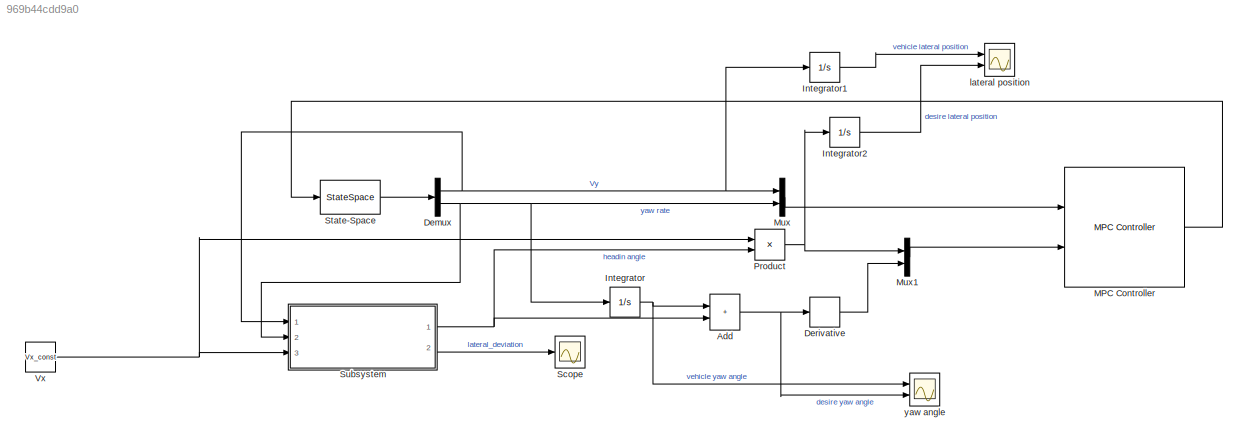
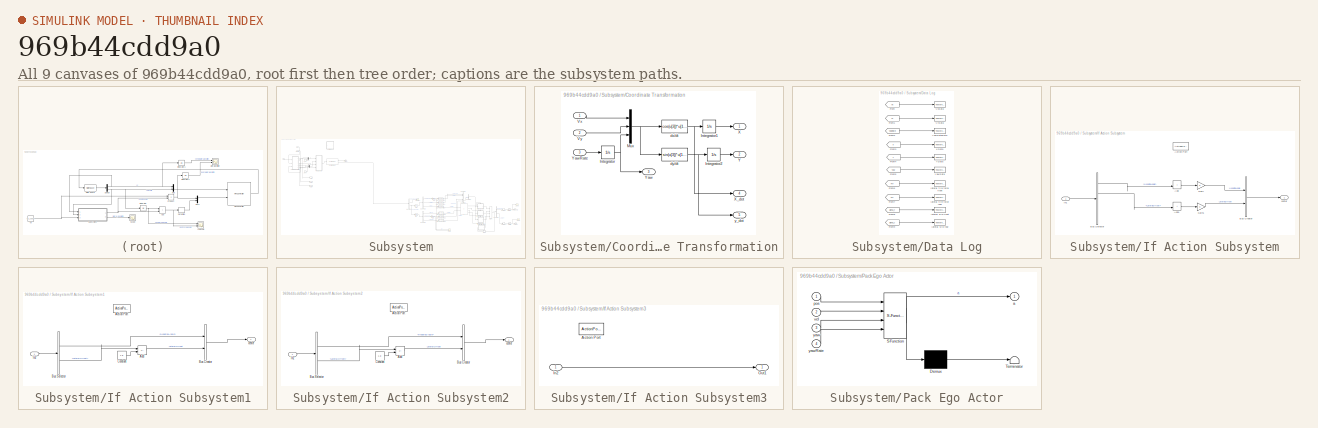
[diagram: thumbnail index - all 9 canvases of the model, root first then tree order]
MODEL slx_969b44cdd9a0
KIND model
CONFIG AbsTol = auto
CONFIG EnableMultiTasking = off
CONFIG FixedStep = 0.1
CONFIG MaxStep = auto
CONFIG MinStep = 0.001
CONFIG PostLoadFcn = if exist('scenarioName','var')\n  helperAEBSetUp(scenarioName)\nelse\n  helperAEBSetUp()\nend
CONFIG RelTol = 1e-3
CONFIG SampleTimeConstraint = Unconstrained
CONFIG SolverName = FixedStepAuto
CONFIG StartTime = 0.0
CONFIG StopTime = 20
BLOCK [Sum] Add
  IconShape = rectangular
  Ports = [2, 1]
BLOCK [Demux] Demux
  Outputs = 2
  Ports = [1, 2]
BLOCK [Derivative] Derivative
BLOCK [Integrator] Integrator
  InitialCondition = Yaw0
  Ports = [1, 1]
BLOCK [Integrator] Integrator1
  Ports = [1, 1]
BLOCK [Integrator] Integrator2
  Ports = [1, 1]
BLOCK [Reference] MPC Controller  REF=mpclib/MPC Controller  (lib defined in mdl_ae329e0e0455)
  Ports = [2, 1]
  SCDEnableBlockLinearizationSpecification = on
  SourceBlock = mpclib/MPC Controller
  SourceProductBaseCode = MP
  SourceType = MPC
BLOCK [Mux] Mux
  DisplayOption = bar
  Inputs = 2
  Ports = [2, 1]
BLOCK [Mux] Mux1
  DisplayOption = bar
  Inputs = 2
  Ports = [2, 1]
BLOCK [Product] Product
  Ports = [2, 1]
BLOCK [Scope] Scope
  Floating = off
  NumInputPorts = 1
  Ports = [1]
  ScopeSpecificationString = Simulink.scopes.TimeScopeBlockCfg('CurrentConfiguration', extmgr.ConfigurationSet(extmgr.Configuration('Core','General UI',true),extmgr.Configuration('Core','Source UI',true),extmgr.Configuration('Sources','WiredSimulink',true,'DataLoggingVariableName','ScopeData1'),extmgr.Configuration('Visuals','Time Domain',true,'SerializedDisplays',{struct('MinYLimReal','0.19642','MaxYLimReal','0.53373','YLabe...<+1374ch>
BLOCK [StateSpace] State-Space
  A = A
  B = B
  C = C
  D = D
  InitialCondition = 0
  Ports = [1, 1]
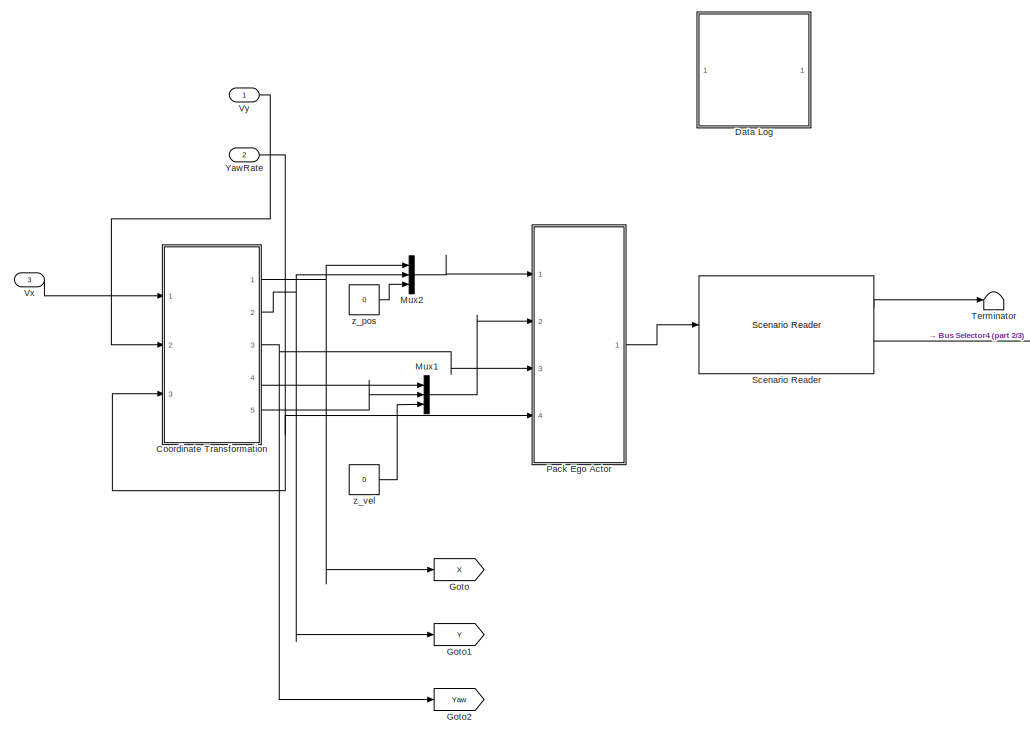
[diagram: Subsystem - part 1/3, top left region]
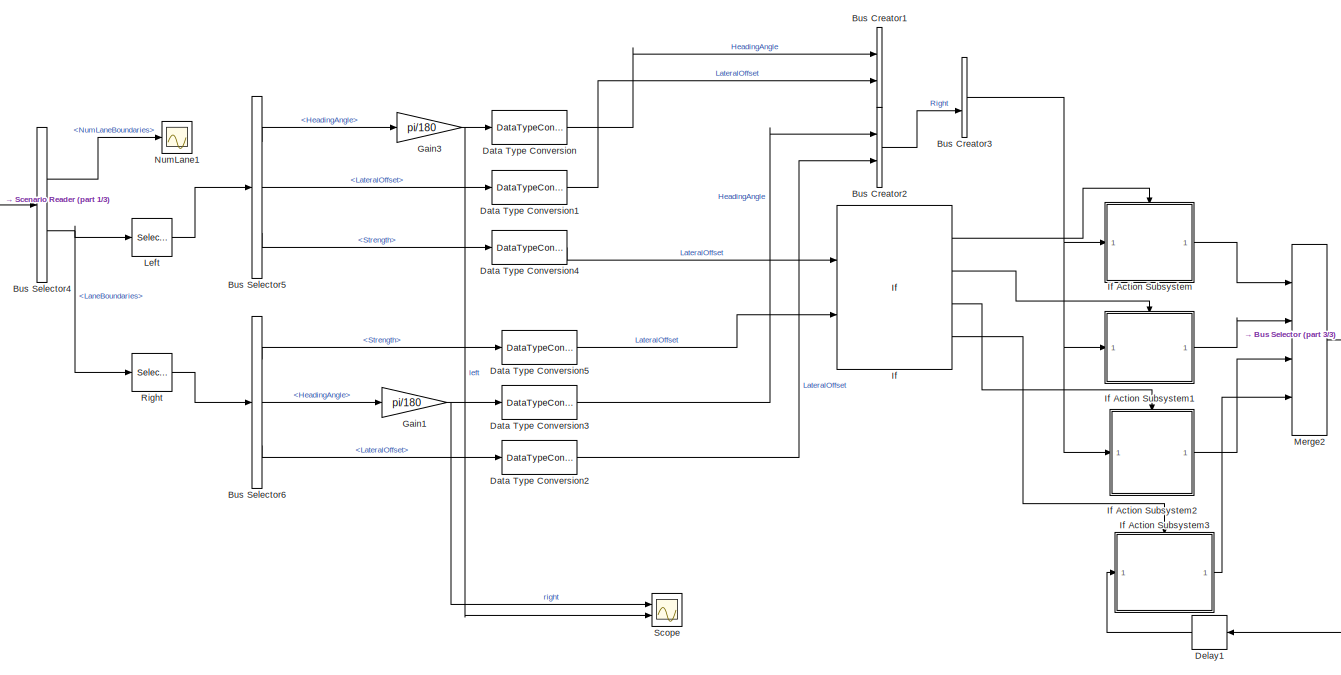
[diagram: Subsystem - part 2/3, bottom right region]
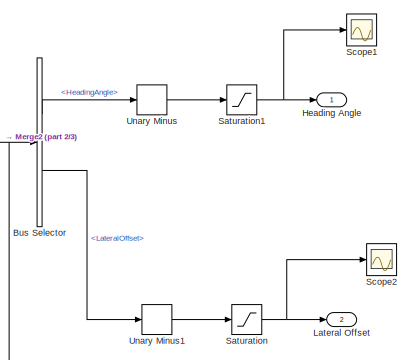
[diagram: Subsystem - part 3/3, bottom right region]
BLOCK [SubSystem] Subsystem
  Ports = [3, 2]
  RequestExecContextInheritance = off
BLOCK [BusCreator] Subsystem/Bus Creator1
  DisplayOption = bar
  InheritFromInputs = on
  Inputs = 2
  Ports = [2, 1]
BLOCK [BusCreator] Subsystem/Bus Creator2
  DisplayOption = bar
  InheritFromInputs = on
  Inputs = 2
  Ports = [2, 1]
BLOCK [BusCreator] Subsystem/Bus Creator3
  DisplayOption = bar
  InheritFromInputs = on
  Inputs = 2
  Ports = [2, 1]
BLOCK [BusSelector] Subsystem/Bus Selector
  OutputSignals = HeadingAngle,LateralOffset
  Ports = [1, 2]
BLOCK [BusSelector] Subsystem/Bus Selector4
  OutputSignals = NumLaneBoundaries,LaneBoundaries
  Ports = [1, 2]
BLOCK [BusSelector] Subsystem/Bus Selector5
  OutputSignals = HeadingAngle,LateralOffset,Strength
  Ports = [1, 3]
BLOCK [BusSelector] Subsystem/Bus Selector6
  OutputSignals = Strength,HeadingAngle,LateralOffset
  Ports = [1, 3]
BLOCK [SubSystem] Subsystem/Coordinate Transformation
  Ports = [3, 5]
  RequestExecContextInheritance = off
BLOCK [Integrator] Subsystem/Coordinate Transformation/Integrator
  InitialCondition = Yaw0
  Ports = [1, 1]
BLOCK [Integrator] Subsystem/Coordinate Transformation/Integrator1
  InitialCondition = X0
  Ports = [1, 1]
BLOCK [Integrator] Subsystem/Coordinate Transformation/Integrator2
  InitialCondition = Y0
  Ports = [1, 1]
BLOCK [Mux] Subsystem/Coordinate Transformation/Mux
  DisplayOption = bar
  Inputs = 3
  Ports = [3, 1]
BLOCK [Inport] Subsystem/Coordinate Transformation/Vx
BLOCK [Inport] Subsystem/Coordinate Transformation/Vy
  Port = 2
BLOCK [Outport] Subsystem/Coordinate Transformation/X
BLOCK [Outport] Subsystem/Coordinate Transformation/X_dot
  Port = 4
BLOCK [Outport] Subsystem/Coordinate Transformation/Y
  Port = 2
BLOCK [Outport] Subsystem/Coordinate Transformation/Yaw
  Port = 3
BLOCK [Inport] Subsystem/Coordinate Transformation/YawRate
  Port = 3
BLOCK [Fcn] Subsystem/Coordinate Transformation/dx//dt
  Expr = cos(u[3])*u[1] - sin(u[3])*u[2]
BLOCK [Fcn] Subsystem/Coordinate Transformation/dy//dt
  Expr = sin(u[3])*u[1] + cos(u[3])*u[2]
BLOCK [Outport] Subsystem/Coordinate Transformation/y_dot
  Port = 5
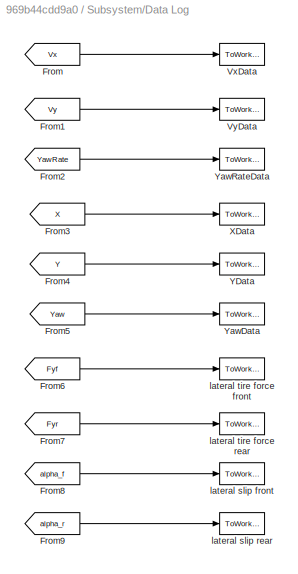
BLOCK [SubSystem] Subsystem/Data Log
  Ports = []
  RequestExecContextInheritance = off
BLOCK [From] Subsystem/Data Log/From
  CloseFcn = tagdialog Close
  GotoTag = Vx
BLOCK [From] Subsystem/Data Log/From1
  CloseFcn = tagdialog Close
  GotoTag = Vy
BLOCK [From] Subsystem/Data Log/From2
  CloseFcn = tagdialog Close
  GotoTag = YawRate
BLOCK [From] Subsystem/Data Log/From3
  CloseFcn = tagdialog Close
  GotoTag = X
  TagVisibility = global
BLOCK [From] Subsystem/Data Log/From4
  CloseFcn = tagdialog Close
  GotoTag = Y
  TagVisibility = global
BLOCK [From] Subsystem/Data Log/From5
  CloseFcn = tagdialog Close
  GotoTag = Yaw
  TagVisibility = global
BLOCK [From] Subsystem/Data Log/From6
  CloseFcn = tagdialog Close
  GotoTag = Fyf
BLOCK [From] Subsystem/Data Log/From7
  CloseFcn = tagdialog Close
  GotoTag = Fyr
BLOCK [From] Subsystem/Data Log/From8
  CloseFcn = tagdialog Close
  GotoTag = alpha_f
BLOCK [From] Subsystem/Data Log/From9
  CloseFcn = tagdialog Close
  GotoTag = alpha_r
BLOCK [ToWorkspace] Subsystem/Data Log/VxData
  MaxDataPoints = inf
  Ports = [1]
  SampleTime = -1
  VariableName = Vx
BLOCK [ToWorkspace] Subsystem/Data Log/VyData
  MaxDataPoints = inf
  Ports = [1]
  SampleTime = -1
  VariableName = Vy
BLOCK [ToWorkspace] Subsystem/Data Log/XData
  MaxDataPoints = inf
  Ports = [1]
  SampleTime = -1
  VariableName = X
BLOCK [ToWorkspace] Subsystem/Data Log/YData
  MaxDataPoints = inf
  Ports = [1]
  SampleTime = -1
  VariableName = Y
BLOCK [ToWorkspace] Subsystem/Data Log/YawData
  MaxDataPoints = inf
  Ports = [1]
  SampleTime = -1
  VariableName = Yaw
BLOCK [ToWorkspace] Subsystem/Data Log/YawRateData
  MaxDataPoints = inf
  Ports = [1]
  SampleTime = -1
  VariableName = YawRate
BLOCK [ToWorkspace] Subsystem/Data Log/lateral slip front
  MaxDataPoints = inf
  Ports = [1]
  SampleTime = -1
  VariableName = alpha_f
BLOCK [ToWorkspace] Subsystem/Data Log/lateral slip rear
  MaxDataPoints = inf
  Ports = [1]
  SampleTime = -1
  VariableName = alpha_r
BLOCK [ToWorkspace] Subsystem/Data Log/lateral tire force front
  MaxDataPoints = inf
  Ports = [1]
  SampleTime = -1
  VariableName = Fyf
BLOCK [ToWorkspace] Subsystem/Data Log/lateral tire force rear
  MaxDataPoints = inf
  Ports = [1]
  SampleTime = -1
  VariableName = Fyr
BLOCK [DataTypeConversion] Subsystem/Data Type Conversion
  RndMeth = Floor
  SaturateOnIntegerOverflow = off
BLOCK [DataTypeConversion] Subsystem/Data Type Conversion1
  RndMeth = Floor
  SaturateOnIntegerOverflow = off
BLOCK [DataTypeConversion] Subsystem/Data Type Conversion2
  RndMeth = Floor
  SaturateOnIntegerOverflow = off
BLOCK [DataTypeConversion] Subsystem/Data Type Conversion3
  RndMeth = Floor
  SaturateOnIntegerOverflow = off
BLOCK [DataTypeConversion] Subsystem/Data Type Conversion4
  RndMeth = Floor
  SaturateOnIntegerOverflow = off
BLOCK [DataTypeConversion] Subsystem/Data Type Conversion5
  RndMeth = Floor
  SaturateOnIntegerOverflow = off
BLOCK [Delay] Subsystem/Delay1
  DelayLength = 1
  InputPortMap = u0
  Ports = [1, 1]
BLOCK [Gain] Subsystem/Gain1
  Gain = pi/180
BLOCK [Gain] Subsystem/Gain3
  Gain = pi/180
BLOCK [Goto] Subsystem/Goto
  GotoTag = X
  TagVisibility = global
BLOCK [Goto] Subsystem/Goto1
  GotoTag = Y
  TagVisibility = global
BLOCK [Goto] Subsystem/Goto2
  GotoTag = Yaw
  TagVisibility = global
BLOCK [Outport] Subsystem/Heading Angle
  VectorParamsAs1DForOutWhenUnconnected = off
BLOCK [If] Subsystem/If
  ElseIfExpressions = u1>0, u2>0
  IfExpression = u1 > 0& u2 > 0
  NumInputs = 2
  Ports = [2, 4]
BLOCK [SubSystem] Subsystem/If Action Subsystem
  Ports = [1, 1, 0, 0, 0, 0, 0, 1]
  RequestExecContextInheritance = off
  TreatAsAtomicUnit = on
BLOCK [ActionPort] Subsystem/If Action Subsystem/Action Port
  ActionPortLabel = if(u1 > 0& u2 > 0)
BLOCK [Sum] Subsystem/If Action Subsystem/Add
  IconShape = rectangular
  Ports = [2, 1]
BLOCK [Sum] Subsystem/If Action Subsystem/Add1
  IconShape = rectangular
  Ports = [2, 1]
BLOCK [BusCreator] Subsystem/If Action Subsystem/Bus Creator
  DisplayOption = bar
  InheritFromInputs = on
  Inputs = 2
  Ports = [2, 1]
BLOCK [BusSelector] Subsystem/If Action Subsystem/Bus Selector
  OutputSignals = Right.HeadingAngle,Right.LateralOffset,Right.HeadingAngle,Right.LateralOffset
  Ports = [1, 4]
BLOCK [Gain] Subsystem/If Action Subsystem/Gain
BLOCK [Gain] Subsystem/If Action Subsystem/Gain1
BLOCK [Inport] Subsystem/If Action Subsystem/In1
BLOCK [Outport] Subsystem/If Action Subsystem/center
BLOCK [SubSystem] Subsystem/If Action Subsystem1
  Ports = [1, 1, 0, 0, 0, 0, 0, 1]
  RequestExecContextInheritance = off
  TreatAsAtomicUnit = on
BLOCK [ActionPort] Subsystem/If Action Subsystem1/Action Port
  ActionPortLabel = elseif(u1>0)
BLOCK [Sum] Subsystem/If Action Subsystem1/Add
  IconShape = rectangular
  Inputs = +-
  Ports = [2, 1]
BLOCK [BusCreator] Subsystem/If Action Subsystem1/Bus Creator
  DisplayOption = bar
  InheritFromInputs = on
  Inputs = 2
  Ports = [2, 1]
BLOCK [BusSelector] Subsystem/If Action Subsystem1/Bus Selector
  OutputSignals = Right.HeadingAngle,Right.LateralOffset
  Ports = [1, 2]
BLOCK [Constant] Subsystem/If Action Subsystem1/Constant
  Value = 1.8
BLOCK [Inport] Subsystem/If Action Subsystem1/In2
BLOCK [Outport] Subsystem/If Action Subsystem1/center
BLOCK [SubSystem] Subsystem/If Action Subsystem2
  Ports = [1, 1, 0, 0, 0, 0, 0, 1]
  RequestExecContextInheritance = off
  TreatAsAtomicUnit = on
BLOCK [ActionPort] Subsystem/If Action Subsystem2/Action Port
  ActionPortLabel = elseif( u2>0)
BLOCK [Sum] Subsystem/If Action Subsystem2/Add
  IconShape = rectangular
  Inputs = +-
  Ports = [2, 1]
BLOCK [BusCreator] Subsystem/If Action Subsystem2/Bus Creator
  DisplayOption = bar
  InheritFromInputs = on
  Inputs = 2
  Ports = [2, 1]
BLOCK [BusSelector] Subsystem/If Action Subsystem2/Bus Selector
  OutputSignals = Right.HeadingAngle,Right.LateralOffset
  Ports = [1, 2]
BLOCK [Constant] Subsystem/If Action Subsystem2/Constant
  Value = 1.8
BLOCK [Inport] Subsystem/If Action Subsystem2/In2
BLOCK [Outport] Subsystem/If Action Subsystem2/center
BLOCK [SubSystem] Subsystem/If Action Subsystem3
  Ports = [1, 1, 0, 0, 0, 0, 0, 1]
  RequestExecContextInheritance = off
  TreatAsAtomicUnit = on
BLOCK [ActionPort] Subsystem/If Action Subsystem3/Action Port
  ActionPortLabel = else
BLOCK [Inport] Subsystem/If Action Subsystem3/In2
BLOCK [Outport] Subsystem/If Action Subsystem3/Out1
BLOCK [Outport] Subsystem/Lateral Offset
  Port = 2
  VectorParamsAs1DForOutWhenUnconnected = off
BLOCK [Selector] Subsystem/Left
  IndexOptions = Index vector (dialog)
  Indices = [1]
  InputPortWidth = 2
  OutputSizes = 1
  Ports = [1, 1]
BLOCK [Merge] Subsystem/Merge2
  Inputs = 4
  Ports = [4, 1]
BLOCK [Mux] Subsystem/Mux1
  DisplayOption = bar
  Inputs = 3
  Ports = [3, 1]
BLOCK [Mux] Subsystem/Mux2
  DisplayOption = bar
  Inputs = 3
  Ports = [3, 1]
BLOCK [Scope] Subsystem/NumLane1
  Floating = off
  NumInputPorts = 1
  Ports = [1]
  ScopeSpecificationString = Simulink.scopes.TimeScopeBlockCfg('CurrentConfiguration', extmgr.ConfigurationSet(extmgr.Configuration('Core','General UI',true),extmgr.Configuration('Core','Source UI',true),extmgr.Configuration('Sources','WiredSimulink',true,'DataLoggingVariableName','ScopeData3'),extmgr.Configuration('Visuals','Time Domain',true,'SerializedDisplays',{struct('MinYLimReal','1.00000','MaxYLimReal','3.00000','YLabe...<+1405ch>
BLOCK [SubSystem] Subsystem/Pack Ego Actor
  ErrorFcn = Stateflow.Translate.translate
  PermitHierarchicalResolution = ExplicitOnly
  Ports = [4, 1]
  RequestExecContextInheritance = off
  SFBlockType = MATLAB Function
  TreatAsAtomicUnit = on
BLOCK [Demux] Subsystem/Pack Ego Actor/ Demux 
  Outputs = 1
  Ports = [1, 1]
BLOCK [S-Function] Subsystem/Pack Ego Actor/ SFunction 
  EnableBusSupport = on
  FunctionName = sf_sfun
  PortCounts = [4 2]
  Ports = [4, 2]
  SFcnIsStateOwnerBlock = off
  SFunctionDeploymentMode = off
  Tag = Stateflow S-Function 5
BLOCK [Terminator] Subsystem/Pack Ego Actor/ Terminator 
BLOCK [Outport] Subsystem/Pack Ego Actor/a
  VectorParamsAs1DForOutWhenUnconnected = off
BLOCK [Inport] Subsystem/Pack Ego Actor/pos
BLOCK [Inport] Subsystem/Pack Ego Actor/vel
  Port = 2
BLOCK [Inport] Subsystem/Pack Ego Actor/yaw
  Port = 3
BLOCK [Inport] Subsystem/Pack Ego Actor/yawRate
  Port = 4
BLOCK [Selector] Subsystem/Right
  IndexOptions = Index vector (dialog)
  Indices = [2]
  InputPortWidth = 2
  OutputSizes = 1
  Ports = [1, 1]
BLOCK [Saturate] Subsystem/Saturation
BLOCK [Saturate] Subsystem/Saturation1
  LowerLimit = -0.6
  UpperLimit = 0.6
BLOCK [Reference] Subsystem/Scenario Reader  REF=drivingscenarioandsensors/Scenario Reader
  Ports = [1, 2]
  SourceBlock = drivingscenarioandsensors/Scenario Reader
  SourceProductBaseCode = DR
  SourceType = driving.scenario.internal.ScenarioReader
BLOCK [Scope] Subsystem/Scope
  Floating = off
  NumInputPorts = 2
  Ports = [2]
  ScopeSpecificationString = Simulink.scopes.TimeScopeBlockCfg('CurrentConfiguration', extmgr.ConfigurationSet(extmgr.Configuration('Core','General UI',true),extmgr.Configuration('Core','Source UI',true),extmgr.Configuration('Sources','WiredSimulink',true,'DataLoggingVariableName','ScopeData2'),extmgr.Configuration('Visuals','Time Domain',true,'SerializedDisplays',{struct('MinYLimReal','-0.69736','MaxYLimReal','0.45122','YLab...<+1404ch>
BLOCK [Scope] Subsystem/Scope1
  Floating = off
  NumInputPorts = 1
  Ports = [1]
  ScopeSpecificationString = Simulink.scopes.TimeScopeBlockCfg('CurrentConfiguration', extmgr.ConfigurationSet(extmgr.Configuration('Core','General UI',true),extmgr.Configuration('Core','Source UI',true),extmgr.Configuration('Sources','WiredSimulink',true,'DataLoggingVariableName','ScopeData4'),extmgr.Configuration('Visuals','Time Domain',true,'SerializedDisplays',{struct('MinYLimReal','-0.45122','MaxYLimReal','0.69736','YLab...<+1403ch>
BLOCK [Scope] Subsystem/Scope2
  Floating = off
  NumInputPorts = 1
  Ports = [1]
  ScopeSpecificationString = Simulink.scopes.TimeScopeBlockCfg('CurrentConfiguration', extmgr.ConfigurationSet(extmgr.Configuration('Core','General UI',true),extmgr.Configuration('Core','Source UI',true),extmgr.Configuration('Sources','WiredSimulink',true,'DataLoggingVariableName','ScopeData5'),extmgr.Configuration('Visuals','Time Domain',true,'SerializedDisplays',{struct('MinYLimReal','-0.625','MaxYLimReal','0.625','YLabelRe...<+1357ch>
BLOCK [Terminator] Subsystem/Terminator
BLOCK [UnaryMinus] Subsystem/Unary Minus
BLOCK [UnaryMinus] Subsystem/Unary Minus1
BLOCK [Inport] Subsystem/Vx
  Port = 3
BLOCK [Inport] Subsystem/Vy
BLOCK [Inport] Subsystem/YawRate
  Port = 2
BLOCK [Constant] Subsystem/z_pos
  Value = 0
BLOCK [Constant] Subsystem/z_vel
  Value = 0
BLOCK [Constant] Vx
  Value = Vx_const
BLOCK [Scope] lateral position
  Floating = off
  NumInputPorts = 2
  Ports = [2]
  ScopeSpecificationString = Simulink.scopes.TimeScopeBlockCfg('CurrentConfiguration', extmgr.ConfigurationSet(extmgr.Configuration('Core','General UI',true),extmgr.Configuration('Core','Source UI',true),extmgr.Configuration('Sources','WiredSimulink',true,'DataLoggingVariableName','ScopeData4'),extmgr.Configuration('Visuals','Time Domain',true,'SerializedDisplays',{struct('MinYLimReal','-43.63001','MaxYLimReal','71.74341','YL...<+1470ch>
BLOCK [Scope] yaw angle
  Floating = off
  NumInputPorts = 2
  Ports = [2]
  ScopeSpecificationString = Simulink.scopes.TimeScopeBlockCfg('CurrentConfiguration', extmgr.ConfigurationSet(extmgr.Configuration('Core','General UI',true),extmgr.Configuration('Core','Source UI',true),extmgr.Configuration('Sources','WiredSimulink',true,'DataLoggingVariableName','ScopeData3'),extmgr.Configuration('Visuals','Time Domain',true,'SerializedDisplays',{struct('MinYLimReal','-16.36051','MaxYLimReal','10.36185','YL...<+1456ch>
NET Add:1 -> Derivative:1, yaw angle:2
NET Demux:1 -> Integrator1:1, Mux:1, Subsystem:1
NET Demux:2 -> Integrator:1, Mux:2, Subsystem:2
LINE Derivative:1 -> Mux1:2
LINE Integrator1:1 -> lateral position:1
LINE Integrator2:1 -> lateral position:2
NET Integrator:1 -> Add:1, yaw angle:1
LINE MPC Controller:1 -> State-Space:1
LINE Mux1:1 -> MPC Controller:2
LINE Mux:1 -> MPC Controller:1
NET Product:1 -> Integrator2:1, Mux1:1
LINE State-Space:1 -> Demux:1
LINE Subsystem/Bus Creator2:1 -> Subsystem/Bus Creator3:2
NET Subsystem/Bus Creator3:1 -> Subsystem/If Action Subsystem1:1, Subsystem/If Action Subsystem2:1, Subsystem/If Action Subsystem:1
LINE Subsystem/Bus Selector4:1 -> Subsystem/NumLane1:1
NET Subsystem/Bus Selector4:2 -> Subsystem/Left:1, Subsystem/Right:1
LINE Subsystem/Bus Selector5:1 -> Subsystem/Gain3:1
LINE Subsystem/Bus Selector5:2 -> Subsystem/Data Type Conversion1:1
LINE Subsystem/Bus Selector5:3 -> Subsystem/Data Type Conversion4:1
LINE Subsystem/Bus Selector6:1 -> Subsystem/Data Type Conversion5:1
LINE Subsystem/Bus Selector6:2 -> Subsystem/Gain1:1
LINE Subsystem/Bus Selector6:3 -> Subsystem/Data Type Conversion2:1
LINE Subsystem/Bus Selector:1 -> Subsystem/Unary Minus:1
LINE Subsystem/Bus Selector:2 -> Subsystem/Unary Minus1:1
LINE Subsystem/Coordinate Transformation/Integrator1:1 -> Subsystem/Coordinate Transformation/X:1
LINE Subsystem/Coordinate Transformation/Integrator2:1 -> Subsystem/Coordinate Transformation/Y:1
NET Subsystem/Coordinate Transformation/Integrator:1 -> Subsystem/Coordinate Transformation/Mux:3, Subsystem/Coordinate Transformation/Yaw:1
NET Subsystem/Coordinate Transformation/Mux:1 -> Subsystem/Coordinate Transformation/dx//dt:1, Subsystem/Coordinate Transformation/dy//dt:1
LINE Subsystem/Coordinate Transformation/Vx:1 -> Subsystem/Coordinate Transformation/Mux:1
LINE Subsystem/Coordinate Transformation/Vy:1 -> Subsystem/Coordinate Transformation/Mux:2
LINE Subsystem/Coordinate Transformation/YawRate:1 -> Subsystem/Coordinate Transformation/Integrator:1
NET Subsystem/Coordinate Transformation/dx//dt:1 -> Subsystem/Coordinate Transformation/Integrator1:1, Subsystem/Coordinate Transformation/X_dot:1
NET Subsystem/Coordinate Transformation/dy//dt:1 -> Subsystem/Coordinate Transformation/Integrator2:1, Subsystem/Coordinate Transformation/y_dot:1
NET Subsystem/Coordinate Transformation:1 -> Subsystem/Goto:1, Subsystem/Mux2:1
NET Subsystem/Coordinate Transformation:2 -> Subsystem/Goto1:1, Subsystem/Mux2:2
NET Subsystem/Coordinate Transformation:3 -> Subsystem/Goto2:1, Subsystem/Pack Ego Actor:3
LINE Subsystem/Coordinate Transformation:4 -> Subsystem/Mux1:1
LINE Subsystem/Coordinate Transformation:5 -> Subsystem/Mux1:2
LINE Subsystem/Data Log/From1:1 -> Subsystem/Data Log/VyData:1
LINE Subsystem/Data Log/From2:1 -> Subsystem/Data Log/YawRateData:1
LINE Subsystem/Data Log/From3:1 -> Subsystem/Data Log/XData:1
LINE Subsystem/Data Log/From4:1 -> Subsystem/Data Log/YData:1
LINE Subsystem/Data Log/From5:1 -> Subsystem/Data Log/YawData:1
LINE Subsystem/Data Log/From6:1 -> Subsystem/Data Log/lateral tire force front:1
LINE Subsystem/Data Log/From7:1 -> Subsystem/Data Log/lateral tire force rear:1
LINE Subsystem/Data Log/From8:1 -> Subsystem/Data Log/lateral slip front:1
LINE Subsystem/Data Log/From9:1 -> Subsystem/Data Log/lateral slip rear:1
LINE Subsystem/Data Log/From:1 -> Subsystem/Data Log/VxData:1
LINE Subsystem/Data Type Conversion1:1 -> Subsystem/Bus Creator1:2
LINE Subsystem/Data Type Conversion2:1 -> Subsystem/Bus Creator2:2
LINE Subsystem/Data Type Conversion3:1 -> Subsystem/Bus Creator2:1
LINE Subsystem/Data Type Conversion4:1 -> Subsystem/If:1
LINE Subsystem/Data Type Conversion5:1 -> Subsystem/If:2
LINE Subsystem/Data Type Conversion:1 -> Subsystem/Bus Creator1:1
LINE Subsystem/Delay1:1 -> Subsystem/If Action Subsystem3:1
NET Subsystem/Gain1:1 -> Subsystem/Data Type Conversion3:1, Subsystem/Scope:1
NET Subsystem/Gain3:1 -> Subsystem/Data Type Conversion:1, Subsystem/Scope:2
LINE Subsystem/If Action Subsystem/Add1:1 -> Subsystem/If Action Subsystem/Gain1:1
LINE Subsystem/If Action Subsystem/Add:1 -> Subsystem/If Action Subsystem/Gain:1
LINE Subsystem/If Action Subsystem/Bus Creator:1 -> Subsystem/If Action Subsystem/center:1
LINE Subsystem/If Action Subsystem/Bus Selector:1 -> Subsystem/If Action Subsystem/Add:2
LINE Subsystem/If Action Subsystem/Bus Selector:2 -> Subsystem/If Action Subsystem/Add1:2
LINE Subsystem/If Action Subsystem/Gain1:1 -> Subsystem/If Action Subsystem/Bus Creator:2
LINE Subsystem/If Action Subsystem/Gain:1 -> Subsystem/If Action Subsystem/Bus Creator:1
LINE Subsystem/If Action Subsystem/In1:1 -> Subsystem/If Action Subsystem/Bus Selector:1
LINE Subsystem/If Action Subsystem1/Add:1 -> Subsystem/If Action Subsystem1/Bus Creator:2
LINE Subsystem/If Action Subsystem1/Bus Creator:1 -> Subsystem/If Action Subsystem1/center:1
LINE Subsystem/If Action Subsystem1/Bus Selector:1 -> Subsystem/If Action Subsystem1/Bus Creator:1
LINE Subsystem/If Action Subsystem1/Bus Selector:2 -> Subsystem/If Action Subsystem1/Add:1
LINE Subsystem/If Action Subsystem1/Constant:1 -> Subsystem/If Action Subsystem1/Add:2
LINE Subsystem/If Action Subsystem1/In2:1 -> Subsystem/If Action Subsystem1/Bus Selector:1
LINE Subsystem/If Action Subsystem1:1 -> Subsystem/Merge2:2
LINE Subsystem/If Action Subsystem2/Add:1 -> Subsystem/If Action Subsystem2/Bus Creator:2
LINE Subsystem/If Action Subsystem2/Bus Creator:1 -> Subsystem/If Action Subsystem2/center:1
LINE Subsystem/If Action Subsystem2/Bus Selector:1 -> Subsystem/If Action Subsystem2/Bus Creator:1
LINE Subsystem/If Action Subsystem2/Bus Selector:2 -> Subsystem/If Action Subsystem2/Add:1
LINE Subsystem/If Action Subsystem2/Constant:1 -> Subsystem/If Action Subsystem2/Add:2
LINE Subsystem/If Action Subsystem2/In2:1 -> Subsystem/If Action Subsystem2/Bus Selector:1
LINE Subsystem/If Action Subsystem2:1 -> Subsystem/Merge2:3
LINE Subsystem/If Action Subsystem3/In2:1 -> Subsystem/If Action Subsystem3/Out1:1
LINE Subsystem/If Action Subsystem3:1 -> Subsystem/Merge2:4
LINE Subsystem/If Action Subsystem:1 -> Subsystem/Merge2:1
LINE Subsystem/If:1 -> Subsystem/If Action Subsystem:ifaction
LINE Subsystem/If:2 -> Subsystem/If Action Subsystem1:ifaction
LINE Subsystem/If:3 -> Subsystem/If Action Subsystem2:ifaction
LINE Subsystem/If:4 -> Subsystem/If Action Subsystem3:ifaction
LINE Subsystem/Left:1 -> Subsystem/Bus Selector5:1
NET Subsystem/Merge2:1 -> Subsystem/Bus Selector:1, Subsystem/Delay1:1
LINE Subsystem/Mux1:1 -> Subsystem/Pack Ego Actor:2
LINE Subsystem/Mux2:1 -> Subsystem/Pack Ego Actor:1
LINE Subsystem/Pack Ego Actor:1 -> Subsystem/Scenario Reader:1
LINE Subsystem/Right:1 -> Subsystem/Bus Selector6:1
NET Subsystem/Saturation1:1 -> Subsystem/Heading Angle:1, Subsystem/Scope1:1
NET Subsystem/Saturation:1 -> Subsystem/Lateral Offset:1, Subsystem/Scope2:1
LINE Subsystem/Scenario Reader:1 -> Subsystem/Terminator:1
LINE Subsystem/Scenario Reader:2 -> Subsystem/Bus Selector4:1
LINE Subsystem/Unary Minus1:1 -> Subsystem/Saturation:1
LINE Subsystem/Unary Minus:1 -> Subsystem/Saturation1:1
LINE Subsystem/Vx:1 -> Subsystem/Coordinate Transformation:1
LINE Subsystem/Vy:1 -> Subsystem/Coordinate Transformation:2
NET Subsystem/YawRate:1 -> Subsystem/Coordinate Transformation:3, Subsystem/Pack Ego Actor:4
LINE Subsystem/z_pos:1 -> Subsystem/Mux2:3
LINE Subsystem/z_vel:1 -> Subsystem/Mux1:3
NET Subsystem:1 -> Add:2, Product:2
LINE Subsystem:2 -> Scope:1
NET Vx:1 -> Product:1, Subsystem:3
note: NET lines group one-source signal fan-out (src -> all destinations, sorted); 1:1 wires keep LINE
CHART Subsystem/Pack Ego Actor states=1 transitions=1
  STATE_LABEL 'eML_blk_kernel()'
  STATE_LABEL "SCRIPT:\nfunction a = packEgo(pos,vel,yaw,yawRate)\n% Pack ego information into a single ego actor bus\n%\n% Imoprtant note:\n% Output is a bus of type BusActorsActors. This is the same bus used by the\n% Scenario Reader to output an individual actor. If you change the\n% output bus name of Scenario Reader change the output bus name here\n% as well by clicking on 'Edit Data' in the menu above.\n\na = struct...<+200ch>"
CHART  states=0 transitions=0
